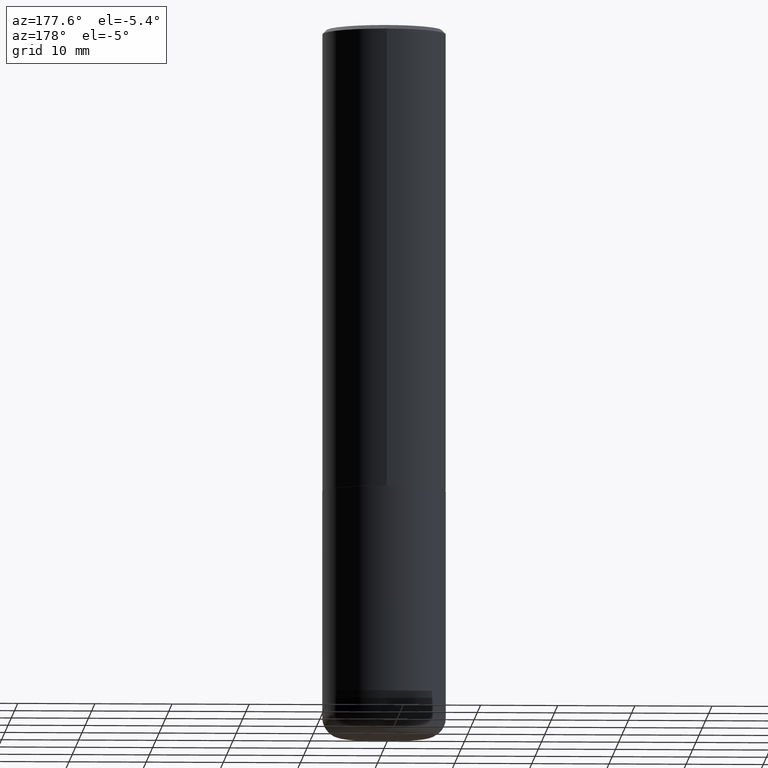
[diagram: clean part render]
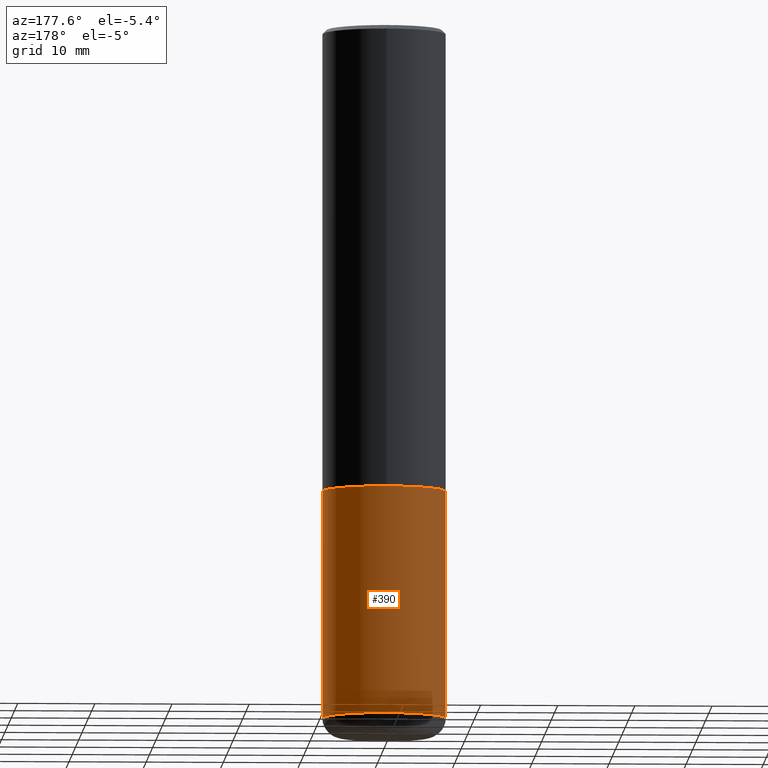
[diagram: same view with one face highlighted and labeled with its STEP entity id]
A machine part, auxiliary view. The second image highlights one B-rep face of the part: STEP entity #390.
In plain terms, the highlighted cylindrical surface (partial cylindrical patch) has radius 7.9997 mm, axis along (-0, 0, 1).
Its self-contained STEP definition (entity closure, byte-faithful):
#8 = CIRCLE ( 'NONE', #188, 0.3149500000000000077 ) ;
#28 = VERTEX_POINT ( 'NONE', #358 ) ;
#53 = DIRECTION ( 'NONE',  ( 1.000000000000000000, -6.982962677686269866E-15, 0.000000000000000000 ) ) ;
#67 = AXIS2_PLACEMENT_3D ( 'NONE', #340, #108, #53 ) ;
#86 = LINE ( 'NONE', #206, #237 ) ;
#87 = ORIENTED_EDGE ( 'NONE', *, *, #415, .F. ) ;
#91 = VERTEX_POINT ( 'NONE', #221 ) ;
#108 = DIRECTION ( 'NONE',  ( -2.445468806185136597E-29, 3.491481338843145583E-15, 1.000000000000000000 ) ) ;
#135 = CYLINDRICAL_SURFACE ( 'NONE', #207, 0.3149500000000000077 ) ;
#170 = EDGE_CURVE ( 'NONE', #260, #28, #271, .T. ) ;
#175 = CARTESIAN_POINT ( 'NONE',  ( 5.776686413970529753E-29, -8.247577218615278049E-15, -2.362199999999999633 ) ) ;
#181 = ORIENTED_EDGE ( 'NONE', *, *, #220, .T. ) ;
#188 = AXIS2_PLACEMENT_3D ( 'NONE', #175, #253, #215 ) ;
#197 = CARTESIAN_POINT ( 'NONE',  ( -0.3149500000000000077, 2.237854346276435590E-15, -1.549218606675782676E-29 ) ) ;
#203 = DIRECTION ( 'NONE',  ( -2.445468806185136877E-29, 3.491481338843145188E-15, 1.000000000000000000 ) ) ;
#205 = FACE_OUTER_BOUND ( 'NONE', #212, .T. ) ;
#206 = CARTESIAN_POINT ( 'NONE',  ( 0.3149500000000000077, -2.199284095337289871E-15, 1.535751875536930130E-29 ) ) ;
#207 = AXIS2_PLACEMENT_3D ( 'NONE', #315, #344, #243 ) ;
#208 = VERTEX_POINT ( 'NONE', #405 ) ;
#212 = EDGE_LOOP ( 'NONE', ( #181, #346, #87, #382 ) ) ;
#215 = DIRECTION ( 'NONE',  ( 1.000000000000000000, -6.982962677686266711E-15, 0.000000000000000000 ) ) ;
#220 = EDGE_CURVE ( 'NONE', #91, #260, #368, .T. ) ;
#221 = CARTESIAN_POINT ( 'NONE',  ( 0.3149499999999999522, -1.450186774088499734E-14, -3.523599999999999621 ) ) ;
#237 = VECTOR ( 'NONE', #203, 39.37007874015748143 ) ;
#242 = DIRECTION ( 'NONE',  ( -2.445468806185136877E-29, 3.491481338843145188E-15, 1.000000000000000000 ) ) ;
#243 = DIRECTION ( 'NONE',  ( 1.000000000000000000, -6.982962677686266711E-15, 4.876176775795936353E-29 ) ) ;
#253 = DIRECTION ( 'NONE',  ( -2.445468806185136597E-29, 3.491481338843145583E-15, 1.000000000000000000 ) ) ;
#256 = VECTOR ( 'NONE', #242, 39.37007874015748143 ) ;
#258 = EDGE_CURVE ( 'NONE', #91, #208, #86, .T. ) ;
#260 = VERTEX_POINT ( 'NONE', #341 ) ;
#271 = LINE ( 'NONE', #197, #256 ) ;
#315 = CARTESIAN_POINT ( 'NONE',  ( 0.000000000000000000, 0.000000000000000000, 0.000000000000000000 ) ) ;
#340 = CARTESIAN_POINT ( 'NONE',  ( 8.616853885473946211E-29, -1.230258364554770589E-14, -3.523599999999999621 ) ) ;
#341 = CARTESIAN_POINT ( 'NONE',  ( -0.3149499999999999522, -1.006472929927126990E-14, -3.523599999999999621 ) ) ;
#344 = DIRECTION ( 'NONE',  ( -2.445468806185136597E-29, 3.491481338843145583E-15, 1.000000000000000000 ) ) ;
#346 = ORIENTED_EDGE ( 'NONE', *, *, #170, .T. ) ;
#358 = CARTESIAN_POINT ( 'NONE',  ( -0.3149500000000000077, -8.037226085805055984E-15, -2.362199999999999633 ) ) ;
#368 = CIRCLE ( 'NONE', #67, 0.3149500000000000077 ) ;
#382 = ORIENTED_EDGE ( 'NONE', *, *, #258, .F. ) ;
#390 = ADVANCED_FACE ( 'NONE', ( #205 ), #135, .T. ) ;
#405 = CARTESIAN_POINT ( 'NONE',  ( 0.3149500000000000077, -1.044686131395256792E-14, -2.362199999999999633 ) ) ;
#415 = EDGE_CURVE ( 'NONE', #208, #28, #8, .T. ) ;